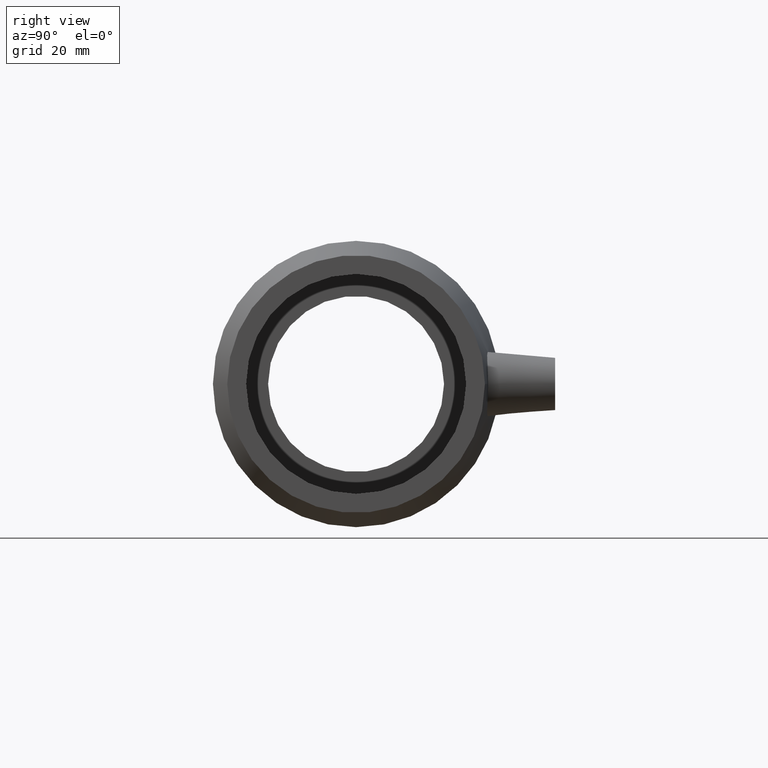
[diagram: clean part render]
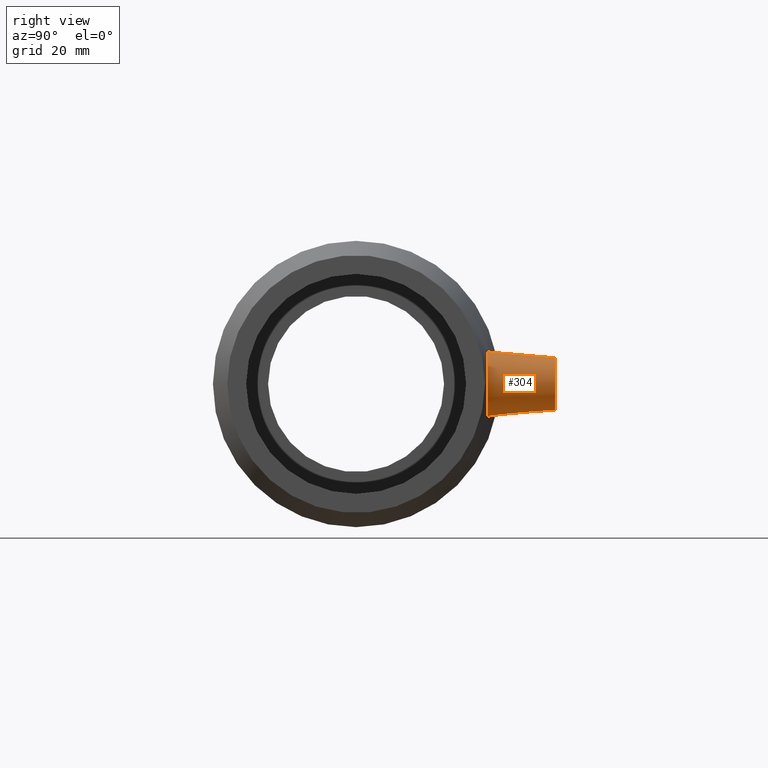
[diagram: same view with one face highlighted and labeled with its STEP entity id]
A machine part, right view. The second image highlights one B-rep face of the part: STEP entity #304.
In plain terms, the highlighted conical surface has half-angle 5 deg.
Its self-contained STEP definition (entity closure, byte-faithful):
#15=B_SPLINE_CURVE_WITH_KNOTS('',3,(#521,#522,#523,#524,#525,#526,#527,
#528,#529,#530,#531,#532,#533,#534,#535,#536,#537,#538,#539,#540,#541,#542,
#543,#544,#545,#546,#547,#548,#549,#550,#551,#552,#553,#554),
 .UNSPECIFIED.,.T.,.F.,(4,2,2,2,2,2,2,2,2,2,2,2,2,2,2,2,4),(0.,0.359183379959774,
0.718366759919548,1.06996396538079,1.42156117084202,1.77315837630326,2.1247555817645,
2.48393896172427,2.84312234168405,3.17985708424301,3.51659182680198,3.85532690567339,
4.19406198454479,4.5327970634162,4.87153214228761,5.20826688484657,5.54500162740553),
 .UNSPECIFIED.);
#17=CONICAL_SURFACE('',#343,7.5,5.);
#30=FACE_BOUND('',#106,.T.);
#70=FACE_OUTER_BOUND('',#105,.T.);
#105=EDGE_LOOP('',(#243));
#106=EDGE_LOOP('',(#244));
#154=CIRCLE('',#344,7.5);
#180=VERTEX_POINT('',#518);
#181=VERTEX_POINT('',#520);
#208=EDGE_CURVE('',#180,#180,#154,.T.);
#209=EDGE_CURVE('',#181,#181,#15,.T.);
#243=ORIENTED_EDGE('',*,*,#208,.F.);
#244=ORIENTED_EDGE('',*,*,#209,.F.);
#304=ADVANCED_FACE('',(#70,#30),#17,.T.);
#343=AXIS2_PLACEMENT_3D('',#517,#417,#418);
#344=AXIS2_PLACEMENT_3D('',#519,#419,#420);
#417=DIRECTION('center_axis',(0.,-1.,0.));
#418=DIRECTION('ref_axis',(-1.,0.,0.));
#419=DIRECTION('center_axis',(0.,1.,0.));
#420=DIRECTION('ref_axis',(-1.,0.,0.));
#517=CARTESIAN_POINT('Origin',(66.4,57.,0.));
#518=CARTESIAN_POINT('',(73.9,57.,9.18485099360515E-16));
#519=CARTESIAN_POINT('Origin',(66.4,57.,0.));
#520=CARTESIAN_POINT('',(66.763402878188,37.8085425731663,9.17183848366914));
#521=CARTESIAN_POINT('Ctrl Pts',(66.763402878188,37.8085425731663,9.17183848366914));
#522=CARTESIAN_POINT('Ctrl Pts',(65.5751515289543,37.9511483914604,9.20643271669712));
#523=CARTESIAN_POINT('Ctrl Pts',(64.3150082902099,38.1654151793234,8.9934917641387));
#524=CARTESIAN_POINT('Ctrl Pts',(62.0045065469998,38.6629321751074,8.06940368649546));
#525=CARTESIAN_POINT('Ctrl Pts',(60.9532384629573,38.9427362066267,7.35867889596439));
#526=CARTESIAN_POINT('Ctrl Pts',(59.3096091583389,39.4215057083059,5.72078504780668));
#527=CARTESIAN_POINT('Ctrl Pts',(58.5999936205124,39.6533585703021,4.68978717553829));
#528=CARTESIAN_POINT('Ctrl Pts',(57.6539025683989,39.9735883942816,2.41567482495753));
#529=CARTESIAN_POINT('Ctrl Pts',(57.4178753979335,40.0592382791709,1.17199068487079));
#530=CARTESIAN_POINT('Ctrl Pts',(57.4178753979335,40.0592382791709,-1.17199068487079));
#531=CARTESIAN_POINT('Ctrl Pts',(57.6539025683989,39.9735883942816,-2.41567482495753));
#532=CARTESIAN_POINT('Ctrl Pts',(58.5999936205124,39.6533585703021,-4.6897871755383));
#533=CARTESIAN_POINT('Ctrl Pts',(59.3096091583389,39.4215057083059,-5.72078504780668));
#534=CARTESIAN_POINT('Ctrl Pts',(60.9532384629573,38.9427362066267,-7.35867889596439));
#535=CARTESIAN_POINT('Ctrl Pts',(62.0045065469998,38.6629321751074,-8.06940368649546));
#536=CARTESIAN_POINT('Ctrl Pts',(64.3150082902099,38.1654151793234,-8.9934917641387));
#537=CARTESIAN_POINT('Ctrl Pts',(65.5751515289543,37.9511483914604,-9.20643271669712));
#538=CARTESIAN_POINT('Ctrl Pts',(67.877389589445,37.6748494899395,-9.13940635901458));
#539=CARTESIAN_POINT('Ctrl Pts',(69.0646971546038,37.5881036335941,-8.88408241454367));
#540=CARTESIAN_POINT('Ctrl Pts',(71.2415851277126,37.5288912755185,-7.91719089171717));
#541=CARTESIAN_POINT('Ctrl Pts',(72.2311002249757,37.5532826727481,-7.20567124738785));
#542=CARTESIAN_POINT('Ctrl Pts',(73.7910280342044,37.6338238910355,-5.58403993411496));
#543=CARTESIAN_POINT('Ctrl Pts',(74.4659713894068,37.695105734845,-4.56257068910721));
#544=CARTESIAN_POINT('Ctrl Pts',(75.359627475163,37.7878280881744,-2.33516657722029));
#545=CARTESIAN_POINT('Ctrl Pts',(75.5783360834217,37.8165307848787,-1.12911692957136));
#546=CARTESIAN_POINT('Ctrl Pts',(75.5783360834217,37.8165307848787,1.12911692957136));
#547=CARTESIAN_POINT('Ctrl Pts',(75.359627475163,37.7878280881744,2.33516657722028));
#548=CARTESIAN_POINT('Ctrl Pts',(74.4659713894068,37.695105734845,4.56257068910721));
#549=CARTESIAN_POINT('Ctrl Pts',(73.7910280342044,37.6338238910355,5.58403993411496));
#550=CARTESIAN_POINT('Ctrl Pts',(72.2311002249757,37.5532826727481,7.20567124738785));
#551=CARTESIAN_POINT('Ctrl Pts',(71.2415851277126,37.5288912755185,7.91719089171717));
#552=CARTESIAN_POINT('Ctrl Pts',(69.0646971546038,37.5881036335941,8.88408241454367));
#553=CARTESIAN_POINT('Ctrl Pts',(67.877389589445,37.6748494899395,9.13940635901458));
#554=CARTESIAN_POINT('Ctrl Pts',(66.763402878188,37.8085425731663,9.17183848366914));